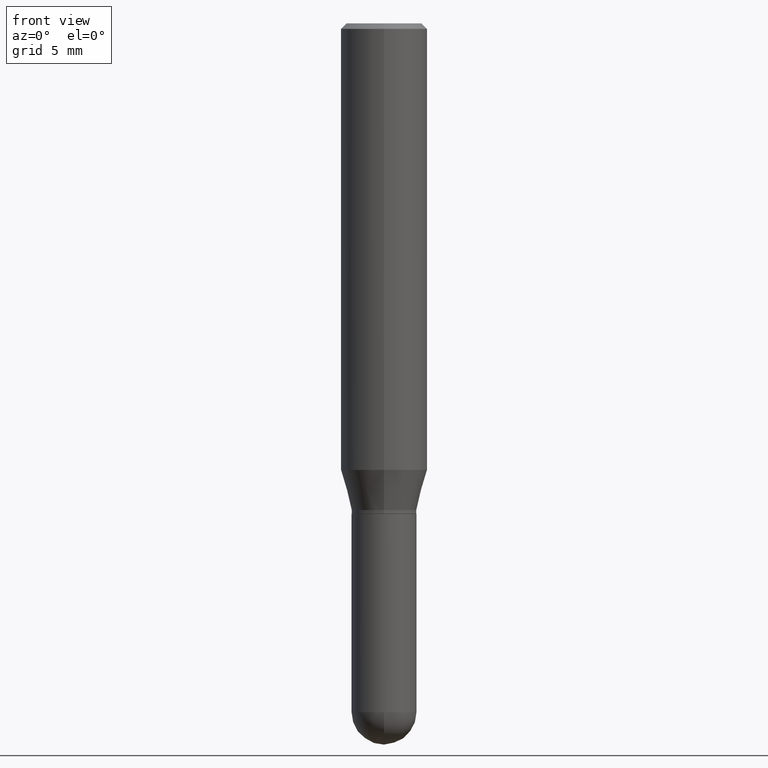
[diagram: clean part render]
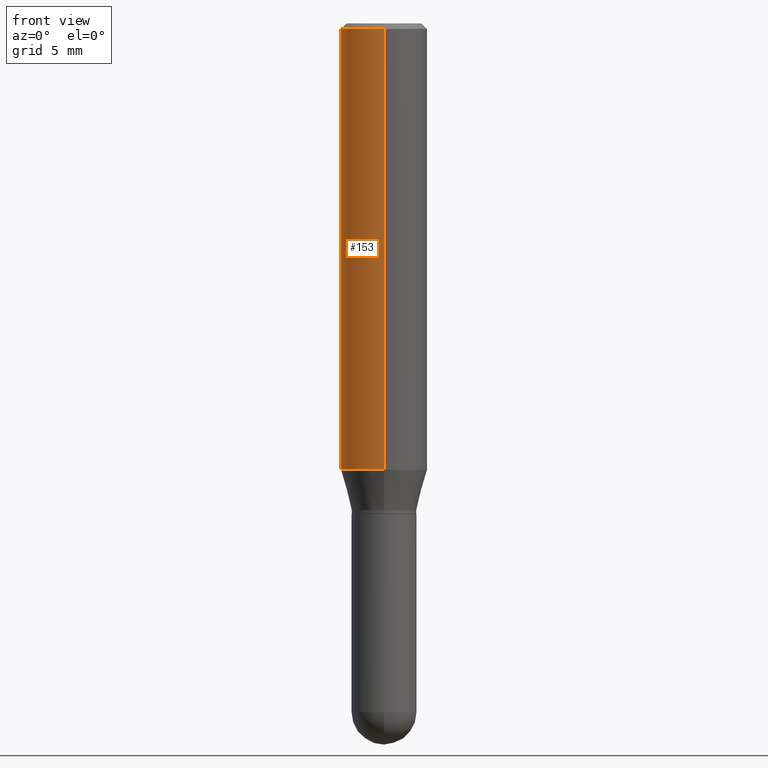
[diagram: same view with one face highlighted and labeled with its STEP entity id]
A machine part, front view. The second image highlights one B-rep face of the part: STEP entity #153.
In plain terms, the highlighted cylindrical surface (partial cylindrical patch) has radius 2.9997 mm, axis along (-0, 0, 1).
Its self-contained STEP definition (entity closure, byte-faithful):
#3 = CARTESIAN_POINT ( 'NONE',  ( -8.246878922347479668E-16, -0.1180999999999999966, 4.122716881796092250E-16 ) ) ;
#5 = CARTESIAN_POINT ( 'NONE',  ( 2.980335345857895291E-29, -4.253640201139528702E-15, -1.218504501176718602 ) ) ;
#9 = CYLINDRICAL_SURFACE ( 'NONE', #346, 0.1180999999999999966 ) ;
#13 = ORIENTED_EDGE ( 'NONE', *, *, #458, .T. ) ;
#29 = EDGE_LOOP ( 'NONE', ( #313, #13, #190, #255 ) ) ;
#36 = EDGE_CURVE ( 'NONE', #424, #367, #126, .T. ) ;
#39 = DIRECTION ( 'NONE',  ( -2.445896049608158354E-29, 3.490869501944193805E-15, 1.000000000000000000 ) ) ;
#47 = LINE ( 'NONE', #3, #472 ) ;
#52 = VERTEX_POINT ( 'NONE', #201 ) ;
#62 = EDGE_CURVE ( 'NONE', #52, #343, #47, .T. ) ;
#71 = CARTESIAN_POINT ( 'NONE',  ( 8.391509709327078780E-16, 0.1180999999999957362, -1.218504501176718824 ) ) ;
#98 = AXIS2_PLACEMENT_3D ( 'NONE', #217, #264, #418 ) ;
#121 = FACE_OUTER_BOUND ( 'NONE', #29, .T. ) ;
#122 = DIRECTION ( 'NONE',  ( -6.982962677686265922E-15, -1.000000000000000000, 3.469747663417777397E-15 ) ) ;
#126 = LINE ( 'NONE', #324, #272 ) ;
#153 = ADVANCED_FACE ( 'NONE', ( #121 ), #9, .T. ) ;
#165 = DIRECTION ( 'NONE',  ( -2.445896049608158074E-29, 3.490869501944193410E-15, 1.000000000000000000 ) ) ;
#190 = ORIENTED_EDGE ( 'NONE', *, *, #62, .T. ) ;
#201 = CARTESIAN_POINT ( 'NONE',  ( -8.246878922347182859E-16, -0.1181000000000042710, -1.218504501176718158 ) ) ;
#204 = AXIS2_PLACEMENT_3D ( 'NONE', #5, #165, #122 ) ;
#217 = CARTESIAN_POINT ( 'NONE',  ( 3.668844074412243487E-31, -5.236304252916299458E-17, -0.01500000000000002547 ) ) ;
#253 = CARTESIAN_POINT ( 'NONE',  ( 8.391509709327082724E-16, 0.1180999999999999411, -0.01500000000000043833 ) ) ;
#255 = ORIENTED_EDGE ( 'NONE', *, *, #361, .F. ) ;
#264 = DIRECTION ( 'NONE',  ( -2.445896049608158074E-29, 3.490869501944193410E-15, 1.000000000000000000 ) ) ;
#272 = VECTOR ( 'NONE', #355, 39.37007874015748143 ) ;
#301 = DIRECTION ( 'NONE',  ( -6.982962677686265922E-15, -1.000000000000000000, 3.490869501944193410E-15 ) ) ;
#313 = ORIENTED_EDGE ( 'NONE', *, *, #36, .F. ) ;
#319 = CIRCLE ( 'NONE', #98, 0.1180999999999999966 ) ;
#324 = CARTESIAN_POINT ( 'NONE',  ( 8.391509709326781971E-16, 0.1180999999999999966, -4.122716881796092250E-16 ) ) ;
#343 = VERTEX_POINT ( 'NONE', #453 ) ;
#346 = AXIS2_PLACEMENT_3D ( 'NONE', #438, #494, #301 ) ;
#355 = DIRECTION ( 'NONE',  ( -2.445896049608158354E-29, 3.490869501944193805E-15, 1.000000000000000000 ) ) ;
#361 = EDGE_CURVE ( 'NONE', #367, #343, #319, .T. ) ;
#362 = CIRCLE ( 'NONE', #204, 0.1180999999999999966 ) ;
#367 = VERTEX_POINT ( 'NONE', #253 ) ;
#418 = DIRECTION ( 'NONE',  ( -6.982962677686265922E-15, -1.000000000000000000, 3.487819265831411744E-15 ) ) ;
#424 = VERTEX_POINT ( 'NONE', #71 ) ;
#438 = CARTESIAN_POINT ( 'NONE',  ( 0.000000000000000000, 0.000000000000000000, 0.000000000000000000 ) ) ;
#453 = CARTESIAN_POINT ( 'NONE',  ( -8.246878922347475723E-16, -0.1181000000000000522, -0.01499999999999961434 ) ) ;
#458 = EDGE_CURVE ( 'NONE', #424, #52, #362, .T. ) ;
#472 = VECTOR ( 'NONE', #39, 39.37007874015748143 ) ;
#494 = DIRECTION ( 'NONE',  ( -2.445896049608158074E-29, 3.490869501944193410E-15, 1.000000000000000000 ) ) ;